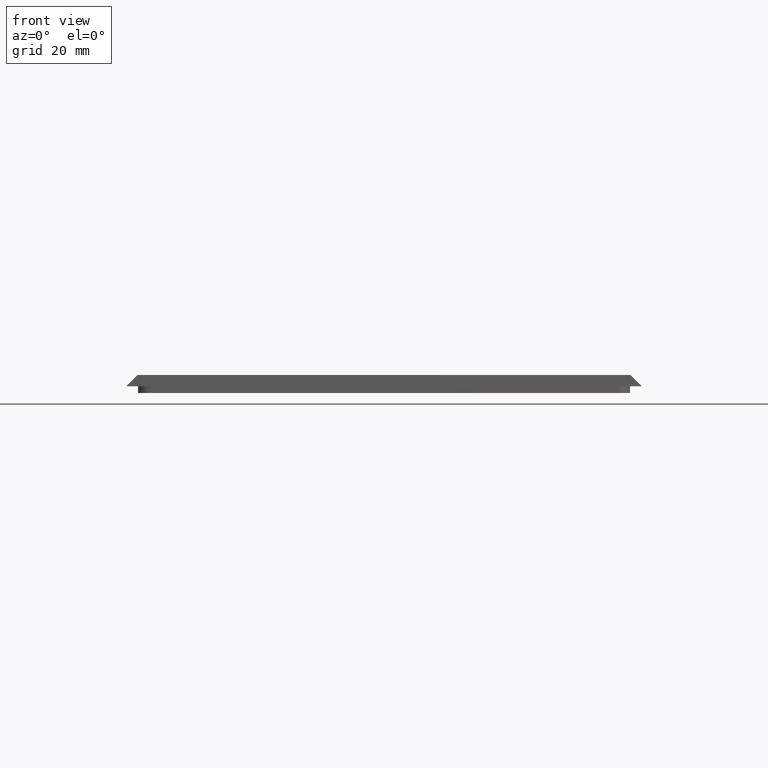
[diagram: clean part render]
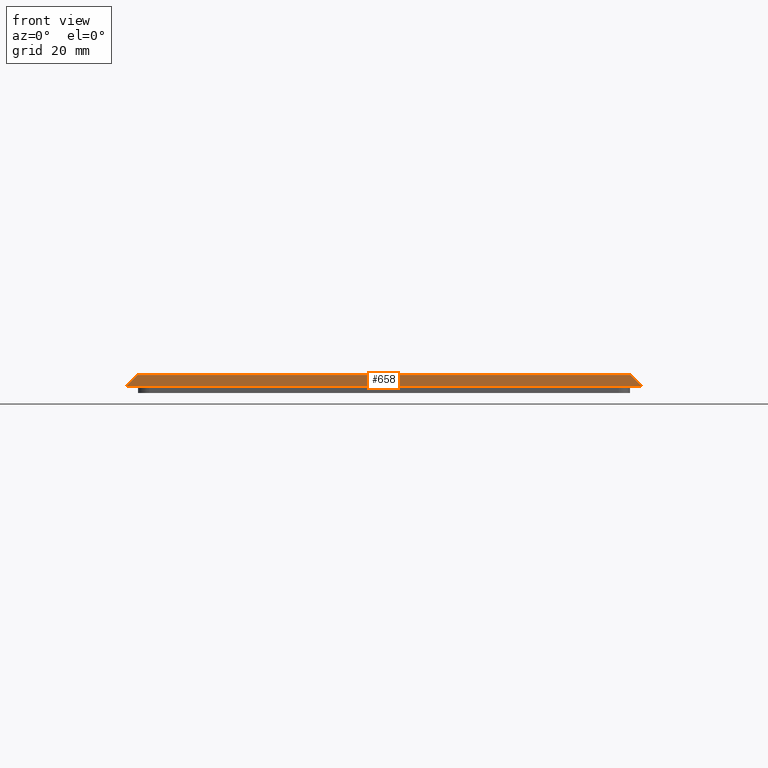
[diagram: same view with one face highlighted and labeled with its STEP entity id]
A machine part, front view. The second image highlights one B-rep face of the part: STEP entity #658.
In plain terms, the highlighted planar face has unit normal (0, -1, 0).
Its self-contained STEP definition (entity closure, byte-faithful):
#76 = DIRECTION ( 'NONE',  ( -0.7071067811865474600, 0.0000000000000000000, -0.7071067811865474600 ) ) ;
#128 = DIRECTION ( 'NONE',  ( 0.0000000000000000000, -0.0000000000000000000, -1.000000000000000000 ) ) ;
#224 = EDGE_CURVE ( 'NONE', #917, #632, #1155, .T. ) ;
#261 = CARTESIAN_POINT ( 'NONE',  ( 0.0000000000000000000, 0.0000000000000000000, -3.000000000000000000 ) ) ;
#279 = CARTESIAN_POINT ( 'NONE',  ( 133.3999999999999800, 0.0000000000000000000, 6.938893903907228400E-015 ) ) ;
#359 = PLANE ( 'NONE',  #1009 ) ;
#395 = ORIENTED_EDGE ( 'NONE', *, *, #682, .T. ) ;
#402 = DIRECTION ( 'NONE',  ( 1.000000000000000000, 0.0000000000000000000, 0.0000000000000000000 ) ) ;
#420 = VECTOR ( 'NONE', #76, 1000.000000000000100 ) ;
#447 = VECTOR ( 'NONE', #490, 1000.000000000000100 ) ;
#486 = FACE_OUTER_BOUND ( 'NONE', #1465, .T. ) ;
#490 = DIRECTION ( 'NONE',  ( -0.7071067811865474600, 0.0000000000000000000, 0.7071067811865474600 ) ) ;
#632 = VERTEX_POINT ( 'NONE', #1361 ) ;
#640 = DIRECTION ( 'NONE',  ( 1.000000000000000000, 0.0000000000000000000, 0.0000000000000000000 ) ) ;
#657 = ORIENTED_EDGE ( 'NONE', *, *, #1437, .T. ) ;
#658 = ADVANCED_FACE ( 'NONE', ( #486 ), #359, .T. ) ;
#682 = EDGE_CURVE ( 'NONE', #632, #1021, #1112, .T. ) ;
#687 = VECTOR ( 'NONE', #402, 1000.000000000000000 ) ;
#722 = LINE ( 'NONE', #786, #687 ) ;
#756 = VERTEX_POINT ( 'NONE', #1245 ) ;
#762 = LINE ( 'NONE', #1072, #420 ) ;
#786 = CARTESIAN_POINT ( 'NONE',  ( 0.0000000000000000000, 0.0000000000000000000, 0.0000000000000000000 ) ) ;
#808 = CARTESIAN_POINT ( 'NONE',  ( 0.0000000000000000000, 0.0000000000000000000, -3.000000000000000000 ) ) ;
#874 = DIRECTION ( 'NONE',  ( 0.0000000000000000000, -1.000000000000000000, 0.0000000000000000000 ) ) ;
#917 = VERTEX_POINT ( 'NONE', #261 ) ;
#966 = VECTOR ( 'NONE', #640, 1000.000000000000000 ) ;
#1009 = AXIS2_PLACEMENT_3D ( 'NONE', #1612, #874, #128 ) ;
#1011 = EDGE_CURVE ( 'NONE', #756, #1021, #722, .T. ) ;
#1021 = VERTEX_POINT ( 'NONE', #279 ) ;
#1072 = CARTESIAN_POINT ( 'NONE',  ( 1.226634733346699300E-015, 0.0000000000000000000, -3.000000000000001300 ) ) ;
#1112 = LINE ( 'NONE', #1238, #447 ) ;
#1155 = LINE ( 'NONE', #808, #966 ) ;
#1238 = CARTESIAN_POINT ( 'NONE',  ( 68.20000000000000300, 0.0000000000000000000, 65.19999999999998900 ) ) ;
#1245 = CARTESIAN_POINT ( 'NONE',  ( 3.000000000000002700, 0.0000000000000000000, 2.168404344971008900E-016 ) ) ;
#1361 = CARTESIAN_POINT ( 'NONE',  ( 136.4000000000000100, 0.0000000000000000000, -3.000000000000000000 ) ) ;
#1362 = ORIENTED_EDGE ( 'NONE', *, *, #224, .T. ) ;
#1437 = EDGE_CURVE ( 'NONE', #756, #917, #762, .T. ) ;
#1465 = EDGE_LOOP ( 'NONE', ( #1362, #395, #1575, #657 ) ) ;
#1575 = ORIENTED_EDGE ( 'NONE', *, *, #1011, .F. ) ;
#1612 = CARTESIAN_POINT ( 'NONE',  ( 0.0000000000000000000, 0.0000000000000000000, -3.000000000000000000 ) ) ;